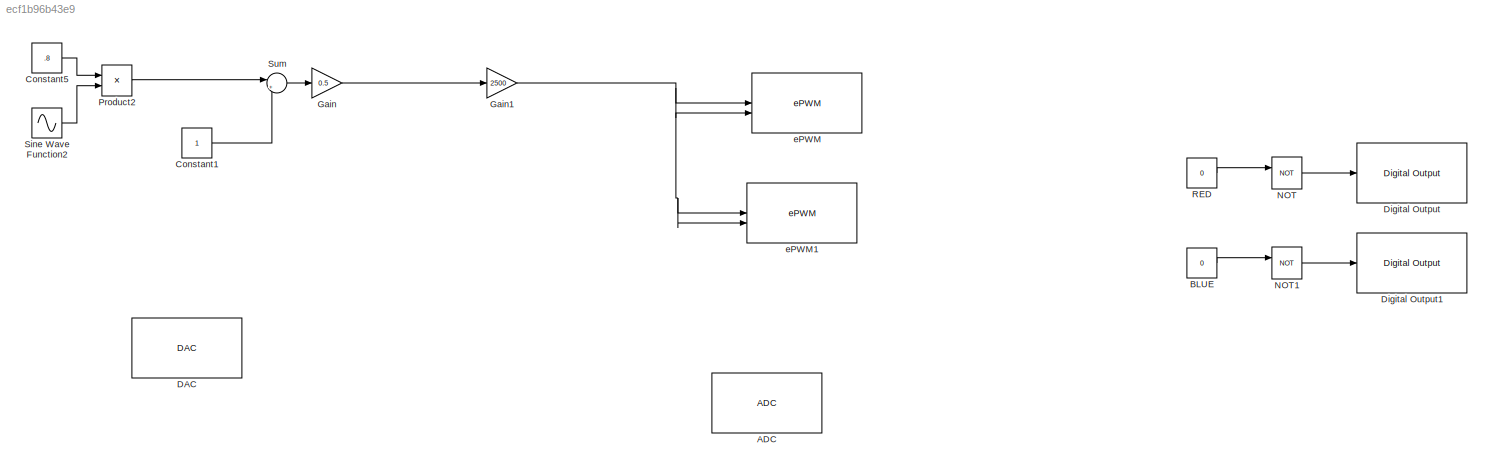
MODEL slx_ecf1b96b43e9
KIND model
CONFIG AbsTol = auto
CONFIG EnableMultiTasking = on
CONFIG FixedStep = auto
CONFIG MaxStep = auto
CONFIG MinStep = auto
CONFIG RelTol = 1e-3
CONFIG SampleTimeConstraint = Unconstrained
CONFIG SolverName = FixedStepAuto
CONFIG StartTime = 0.0
CONFIG StopTime = Inf
BLOCK [Reference] ADC  REF=c2802xlib/ADC
  Commented = on
  LibrarySourceBlock = c2837xDlib/ADC
  SourceBlock = c2802xlib/ADC
  SourceType = ADC Type 3-5
  UserDataPersistent = on
BLOCK [Constant] BLUE
  Commented = on
  Value = 0
BLOCK [Constant] Constant1
BLOCK [Constant] Constant5
  Value = .8
BLOCK [Reference] DAC  REF=c2837xDlib/DAC
  Commented = on
  SourceBlock = c2837xDlib/DAC
  SourceType = codertarget.tic2000.blocks.DACWrite
BLOCK [Reference] Digital Output  REF=c2837xDlib/Digital Output
  Commented = on
  SourceBlock = c2837xDlib/Digital Output
  SourceType = F2837x GPIO Digital Output
  UserDataPersistent = on
BLOCK [Reference] Digital Output1  REF=c2837xDlib/Digital Output
  Commented = on
  SourceBlock = c2837xDlib/Digital Output
  SourceType = F2837x GPIO Digital Output
  UserDataPersistent = on
BLOCK [Gain] Gain
  Gain = 0.5
BLOCK [Gain] Gain1
  Gain = 2500
BLOCK [Logic] NOT
  AllPortsSameDT = off
  Commented = on
  IconShape = distinctive
  Operator = NOT
  OutDataTypeStr = boolean
BLOCK [Logic] NOT1
  AllPortsSameDT = off
  Commented = on
  IconShape = distinctive
  Operator = NOT
  OutDataTypeStr = boolean
BLOCK [Product] Product2
BLOCK [Constant] RED
  Commented = on
  Tag = RED
  Value = 0
BLOCK [Sin] Sine Wave Function2
  Amplitude = .8
  Frequency = 2*pi*60
  SampleTime = 0
  TimeSource = Use external signal
BLOCK [Sum] Sum
  Inputs = |++
BLOCK [Reference] ePWM  REF=c2802xlib/ePWM
  LibrarySourceBlock = c2837xDlib/ePWM
  SourceBlock = c2802xlib/ePWM
  SourceType = ePWM Type 1-4
  UserDataPersistent = on
BLOCK [Reference] ePWM1  REF=c2802xlib/ePWM
  LibrarySourceBlock = c2837xDlib/ePWM
  SourceBlock = c2802xlib/ePWM
  SourceType = ePWM Type 1-4
  UserDataPersistent = on
LINE BLUE:1 -> NOT1:1
LINE Constant1:1 -> Sum:2
LINE Constant5:1 -> Product2:1
NET Gain1:1 -> ePWM1:1, ePWM1:2, ePWM:1, ePWM:2
LINE Gain:1 -> Gain1:1
LINE NOT1:1 -> Digital Output1:1
LINE NOT:1 -> Digital Output:1
LINE Product2:1 -> Sum:1
LINE RED:1 -> NOT:1
LINE Sine Wave Function2:1 -> Product2:2
LINE Sum:1 -> Gain:1
note: NET lines group one-source signal fan-out (src -> all destinations, sorted); 1:1 wires keep LINE
